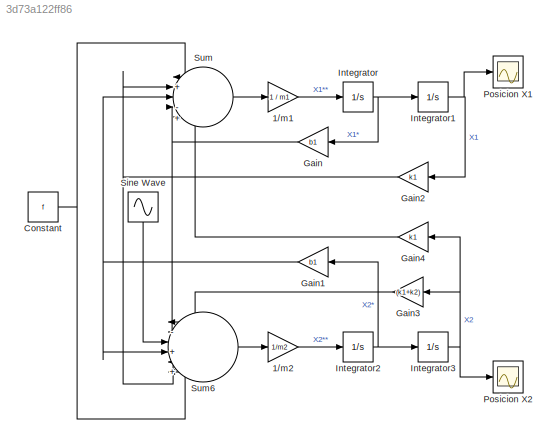
MODEL slx_3d73a122ff86
KIND model
CONFIG AbsTol = auto
CONFIG EnableMultiTasking = off
CONFIG FixedStep = auto
CONFIG MaxStep = 0.001
CONFIG MinStep = auto
CONFIG RelTol = 1e-3
CONFIG SampleTimeConstraint = Unconstrained
CONFIG SolverName = ode45
CONFIG StartTime = 0.0
CONFIG StopTime = 10.0
BLOCK [Gain] 1//m1
  Gain = 1 / m1
BLOCK [Gain] 1//m2
  Gain = 1/m2
BLOCK [Constant] Constant
  Value = f
BLOCK [Gain] Gain
  Gain = b1
  NameLocation = top
BLOCK [Gain] Gain1
  Gain = b1
  NameLocation = top
BLOCK [Gain] Gain2
  Gain = k1
  NameLocation = top
BLOCK [Gain] Gain3
  Gain = (k1+k2)
  NameLocation = top
BLOCK [Gain] Gain4
  Gain = k1
  NameLocation = top
BLOCK [Integrator] Integrator
BLOCK [Integrator] Integrator1
BLOCK [Integrator] Integrator2
BLOCK [Integrator] Integrator3
BLOCK [Scope] Posicion X1
  Floating = off
  NumInputPorts = 1
  ScopeSpecificationString = Simulink.scopes.TimeScopeBlockCfg('CurrentConfiguration', extmgr.ConfigurationSet(extmgr.Configuration('Core','General UI',true),extmgr.Configuration('Core','Source UI',true),extmgr.Configuration('Sources','WiredSimulink',true,'DataLoggingVariableName','ScopeData1'),extmgr.Configuration('Visuals','Time Domain',true,'SerializedDisplays',{struct('MinYLimReal','-0.07025','MaxYLimReal','0.08057','YLab...<+1414ch>
BLOCK [Scope] Posicion X2
  Floating = off
  NumInputPorts = 1
  ScopeSpecificationString = Simulink.scopes.TimeScopeBlockCfg('CurrentConfiguration', extmgr.ConfigurationSet(extmgr.Configuration('Core','General UI',true),extmgr.Configuration('Core','Source UI',true),extmgr.Configuration('Sources','WiredSimulink',true),extmgr.Configuration('Visuals','Time Domain',true,'SerializedDisplays',{struct('MinYLimReal','-0.0664','MaxYLimReal','0.07096','YLabelReal','','MinYLimMag','0.00000','MaxYL...<+1373ch>
BLOCK [Sin] Sine Wave
  Amplitude = 0.05*k2
  Frequency = 0.5*pi
  NameLocation = left
  SampleTime = 0
BLOCK [Sum] Sum
  Inputs = |+|-|+|-|+|
BLOCK [Sum] Sum6
  Inputs = |-|+|+|-|+|-|
LINE 1//m1:1 -> Integrator:1
LINE 1//m2:1 -> Integrator2:1
NET Constant:1 -> Sum6:6, Sum:1
NET Gain1:1 -> Sum6:4, Sum:3
NET Gain2:1 -> Sum6:5, Sum:2
LINE Gain3:1 -> Sum6:1
LINE Gain4:1 -> Sum:5
NET Gain:1 -> Sum6:2, Sum:4
NET Integrator1:1 -> Gain2:1, Posicion X1:1
NET Integrator2:1 -> Gain1:1, Integrator3:1
NET Integrator3:1 -> Gain3:1, Gain4:1, Posicion X2:1
NET Integrator:1 -> Gain:1, Integrator1:1
LINE Sine Wave:1 -> Sum6:3
LINE Sum6:1 -> 1//m2:1
LINE Sum:1 -> 1//m1:1
note: NET lines group one-source signal fan-out (src -> all destinations, sorted); 1:1 wires keep LINE
